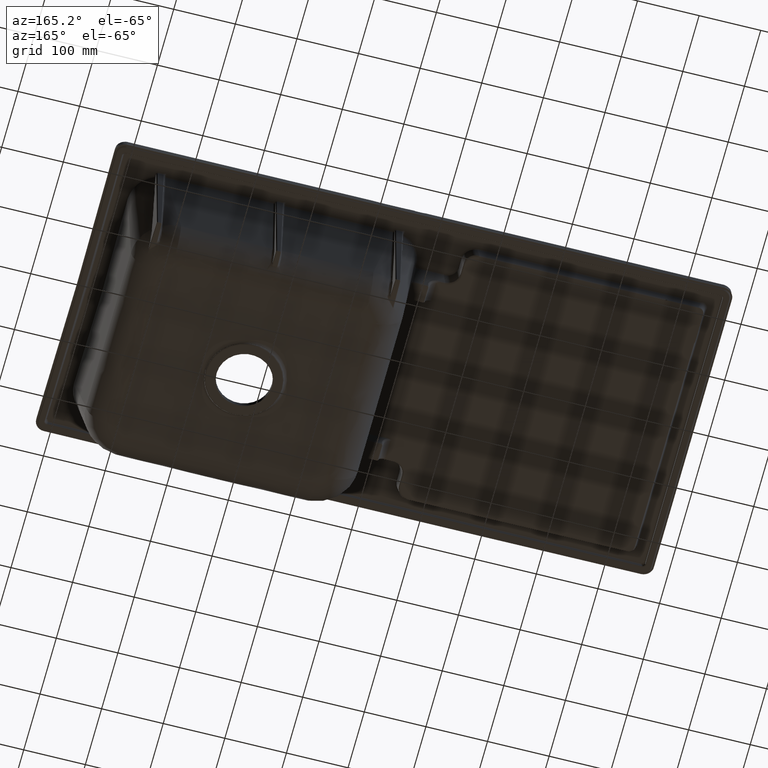
[diagram: clean part render]
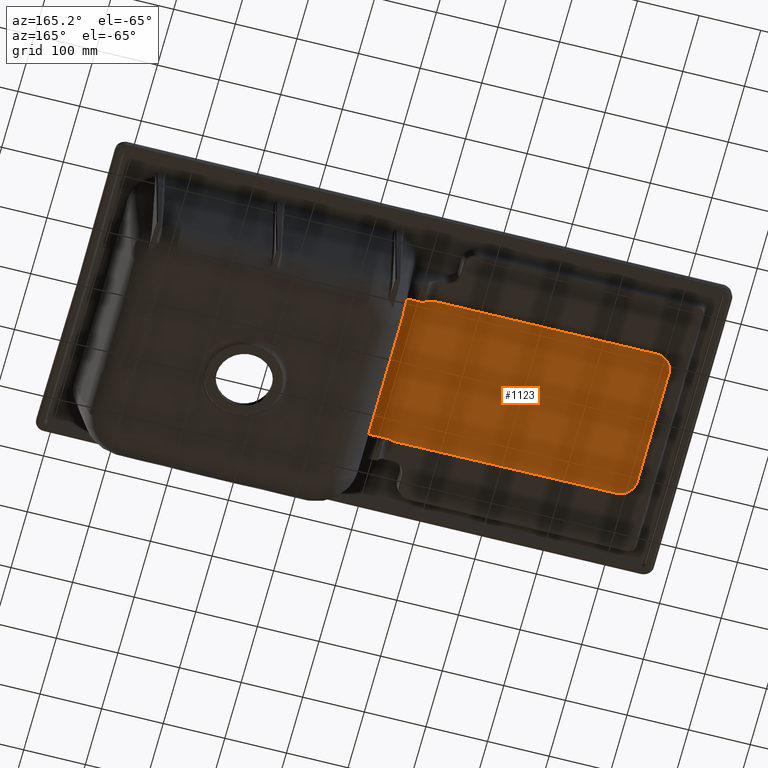
[diagram: same view with one face highlighted and labeled with its STEP entity id]
A machine part, auxiliary view. The second image highlights one B-rep face of the part: STEP entity #1123.
In plain terms, the highlighted face is a freeform B-spline surface patch.
Its self-contained STEP definition (entity closure, byte-faithful):
#1123=ADVANCED_FACE('',(#1654),#1575,.T.);
#1575=B_SPLINE_SURFACE_WITH_KNOTS('',3,1,((#9357,#9358),(#9359,#9360),(#9361,
#9362),(#9363,#9364)),.UNSPECIFIED.,.F.,.F.,.F.,(4,4),(2,2),(0.,1.),(0.,
1.),.UNSPECIFIED.);
#1654=FACE_OUTER_BOUND('',#2096,.T.);
#2096=EDGE_LOOP('',(#2577,#2578,#2579,#2580,#2581,#2582,#2583,#2584,#2585,
#2586,#2587,#2588,#2589));
#2577=ORIENTED_EDGE('',*,*,#5234,.F.);
#2578=ORIENTED_EDGE('',*,*,#5235,.F.);
#2579=ORIENTED_EDGE('',*,*,#5236,.F.);
#2580=ORIENTED_EDGE('',*,*,#5237,.F.);
#2581=ORIENTED_EDGE('',*,*,#5238,.F.);
#2582=ORIENTED_EDGE('',*,*,#5239,.F.);
#2583=ORIENTED_EDGE('',*,*,#5240,.F.);
#2584=ORIENTED_EDGE('',*,*,#5241,.F.);
#2585=ORIENTED_EDGE('',*,*,#5242,.F.);
#2586=ORIENTED_EDGE('',*,*,#5243,.F.);
#2587=ORIENTED_EDGE('',*,*,#5244,.F.);
#2588=ORIENTED_EDGE('',*,*,#5245,.F.);
#2589=ORIENTED_EDGE('',*,*,#5246,.F.);
#4643=VERTEX_POINT('',#9246);
#4644=VERTEX_POINT('',#9247);
#4645=VERTEX_POINT('',#9252);
#4646=VERTEX_POINT('',#9257);
#4647=VERTEX_POINT('',#9268);
#4648=VERTEX_POINT('',#9279);
#4649=VERTEX_POINT('',#9296);
#4650=VERTEX_POINT('',#9301);
#4651=VERTEX_POINT('',#9310);
#4652=VERTEX_POINT('',#9315);
#4653=VERTEX_POINT('',#9324);
#4654=VERTEX_POINT('',#9329);
#4655=VERTEX_POINT('',#9346);
#5234=EDGE_CURVE('',#4643,#4644,#6262,.T.);
#5235=EDGE_CURVE('',#4645,#4643,#6263,.T.);
#5236=EDGE_CURVE('',#4646,#4645,#6264,.T.);
#5237=EDGE_CURVE('',#4647,#4646,#6265,.T.);
#5238=EDGE_CURVE('',#4648,#4647,#6266,.T.);
#5239=EDGE_CURVE('',#4649,#4648,#6267,.T.);
#5240=EDGE_CURVE('',#4650,#4649,#6268,.T.);
#5241=EDGE_CURVE('',#4651,#4650,#6269,.T.);
#5242=EDGE_CURVE('',#4652,#4651,#6270,.T.);
#5243=EDGE_CURVE('',#4653,#4652,#6271,.T.);
#5244=EDGE_CURVE('',#4654,#4653,#6272,.T.);
#5245=EDGE_CURVE('',#4655,#4654,#6273,.T.);
#5246=EDGE_CURVE('',#4644,#4655,#6274,.T.);
#6262=B_SPLINE_CURVE_WITH_KNOTS('',3,(#9236,#9237,#9238,#9239,#9240,#9241,
#9242,#9243,#9244,#9245),.UNSPECIFIED.,.F.,.F.,(4,2,2,2,4),(0.,0.25,0.5,
0.75,1.),.UNSPECIFIED.);
#6263=B_SPLINE_CURVE_WITH_KNOTS('',3,(#9248,#9249,#9250,#9251),
 .UNSPECIFIED.,.F.,.F.,(4,4),(0.,1.),.UNSPECIFIED.);
#6264=B_SPLINE_CURVE_WITH_KNOTS('',3,(#9253,#9254,#9255,#9256),
 .UNSPECIFIED.,.F.,.F.,(4,4),(0.,1.),.UNSPECIFIED.);
#6265=B_SPLINE_CURVE_WITH_KNOTS('',3,(#9258,#9259,#9260,#9261,#9262,#9263,
#9264,#9265,#9266,#9267),.UNSPECIFIED.,.F.,.F.,(4,2,2,2,4),(0.,0.25,0.5,
0.75,1.),.UNSPECIFIED.);
#6266=B_SPLINE_CURVE_WITH_KNOTS('',3,(#9269,#9270,#9271,#9272,#9273,#9274,
#9275,#9276,#9277,#9278),.UNSPECIFIED.,.F.,.F.,(4,2,2,2,4),(0.,0.001818422318701,
0.068091667028033,0.333184645865361,1.),.UNSPECIFIED.);
#6267=B_SPLINE_CURVE_WITH_KNOTS('',3,(#9280,#9281,#9282,#9283,#9284,#9285,
#9286,#9287,#9288,#9289,#9290,#9291,#9292,#9293,#9294,#9295),
 .UNSPECIFIED.,.F.,.F.,(4,2,2,2,2,2,2,4),(0.,0.249999999999997,0.374999999999995,
0.437499999999993,0.468749999999992,0.499999999999991,0.749999999999995,
1.),.UNSPECIFIED.);
#6268=B_SPLINE_CURVE_WITH_KNOTS('',3,(#9297,#9298,#9299,#9300),
 .UNSPECIFIED.,.F.,.F.,(4,4),(0.,1.),.UNSPECIFIED.);
#6269=B_SPLINE_CURVE_WITH_KNOTS('',3,(#9302,#9303,#9304,#9305,#9306,#9307,
#9308,#9309),.UNSPECIFIED.,.F.,.F.,(4,2,2,4),(0.,0.25,0.5,1.),
 .UNSPECIFIED.);
#6270=B_SPLINE_CURVE_WITH_KNOTS('',3,(#9311,#9312,#9313,#9314),
 .UNSPECIFIED.,.F.,.F.,(4,4),(0.,1.),.UNSPECIFIED.);
#6271=B_SPLINE_CURVE_WITH_KNOTS('',3,(#9316,#9317,#9318,#9319,#9320,#9321,
#9322,#9323),.UNSPECIFIED.,.F.,.F.,(4,2,2,4),(0.,0.249999999999998,0.499999999999996,
1.),.UNSPECIFIED.);
#6272=B_SPLINE_CURVE_WITH_KNOTS('',3,(#9325,#9326,#9327,#9328),
 .UNSPECIFIED.,.F.,.F.,(4,4),(0.,1.),.UNSPECIFIED.);
#6273=B_SPLINE_CURVE_WITH_KNOTS('',3,(#9330,#9331,#9332,#9333,#9334,#9335,
#9336,#9337,#9338,#9339,#9340,#9341,#9342,#9343,#9344,#9345),
 .UNSPECIFIED.,.F.,.F.,(4,2,2,2,2,2,2,4),(0.,0.25,0.5,0.531249999999999,
0.562499999999999,0.625,0.75,1.),.UNSPECIFIED.);
#6274=B_SPLINE_CURVE_WITH_KNOTS('',3,(#9347,#9348,#9349,#9350,#9351,#9352,
#9353,#9354,#9355,#9356),.UNSPECIFIED.,.F.,.F.,(4,2,2,2,4),(0.,0.0165683111773069,
0.082841555886534,0.347934534723442,1.),.UNSPECIFIED.);
#9236=CARTESIAN_POINT('',(-436.823176198158,-96.9804875295234,-33.1253983919792));
#9237=CARTESIAN_POINT('',(-436.826813351735,-100.658943555463,-33.1253603024037));
#9238=CARTESIAN_POINT('',(-436.135805677247,-104.20563049958,-33.1325967823744));
#9239=CARTESIAN_POINT('',(-433.415160250501,-110.910616524318,-33.1610883561512));
#9240=CARTESIAN_POINT('',(-431.385304990937,-113.987982306221,-33.1823457277717));
#9241=CARTESIAN_POINT('',(-426.32021197814,-119.094288406202,-33.2353891967375));
#9242=CARTESIAN_POINT('',(-423.242391369267,-121.154986901284,-33.2676212370054));
#9243=CARTESIAN_POINT('',(-416.593251636671,-123.906514700434,-33.3372534108201));
#9244=CARTESIAN_POINT('',(-412.968877266628,-124.628379976104,-33.3752091579174));
#9245=CARTESIAN_POINT('',(-409.32672696493,-124.635326588598,-33.4133510609404));
#9246=CARTESIAN_POINT('',(-436.823176198159,-96.9804875295234,-33.1253983919776));
#9247=CARTESIAN_POINT('',(-409.326726964917,-124.635326582043,-33.4133510609388));
#9248=CARTESIAN_POINT('',(-436.727281733417,0.00292663694321562,-33.1264026331751));
#9249=CARTESIAN_POINT('',(-436.759246554998,-32.3248780852123,-33.1260678861098));
#9250=CARTESIAN_POINT('',(-436.791211376579,-64.6526828073679,-33.1257331390445));
#9251=CARTESIAN_POINT('',(-436.82317619816,-96.9804875295234,-33.1253983919792));
#9252=CARTESIAN_POINT('',(-436.727284627192,0.00292663598934576,-33.126402602869));
#9253=CARTESIAN_POINT('',(-436.823176198161,96.9804875295234,-33.1253983919792));
#9254=CARTESIAN_POINT('',(-436.791213305763,64.6546338980274,-33.1257331188414));
#9255=CARTESIAN_POINT('',(-436.759250413365,32.3287802665314,-33.1260678457036));
#9256=CARTESIAN_POINT('',(-436.727287520966,0.00292663503546388,-33.1264025725658));
#9257=CARTESIAN_POINT('',(-436.82317619816,96.9804875295234,-33.1253983919779));
#9258=CARTESIAN_POINT('',(-409.326726964356,124.635326588599,-33.4133510609464));
#9259=CARTESIAN_POINT('',(-413.004325357357,124.628312366627,-33.3748379328094));
#9260=CARTESIAN_POINT('',(-416.552078239933,123.919616750316,-33.3376845933841));
#9261=CARTESIAN_POINT('',(-423.235413315929,121.161782461872,-33.2676943136803));
#9262=CARTESIAN_POINT('',(-426.302880475895,119.107012421095,-33.2355706984393));
#9263=CARTESIAN_POINT('',(-431.369183436334,114.008952280267,-33.1825145584682));
#9264=CARTESIAN_POINT('',(-433.409758975821,110.914336420764,-33.161144920235));
#9265=CARTESIAN_POINT('',(-436.121540755505,104.250308281109,-33.1327461697463));
#9266=CARTESIAN_POINT('',(-436.826778017359,100.623207932612,-33.1253606724379));
#9267=CARTESIAN_POINT('',(-436.823176198158,96.9804875295235,-33.1253983919792));
#9268=CARTESIAN_POINT('',(-409.326726964344,124.635326582044,-33.4133510609449));
#9269=CARTESIAN_POINT('',(-47.2101514960194,125.325985470727,-37.2055655936906));
#9270=CARTESIAN_POINT('',(-47.4296451169538,125.325566834206,-37.2032669778427));
#9271=CARTESIAN_POINT('',(-47.6491387378882,125.325148197685,-37.2009683619949));
#9272=CARTESIAN_POINT('',(-55.8681791652612,125.309472159029,-37.114895625574));
#9273=CARTESIAN_POINT('',(-63.8677259716998,125.294214756892,-37.031121505001));
#9274=CARTESIAN_POINT('',(-103.865460003893,125.21792774621,-36.6122509021362));
#9275=CARTESIAN_POINT('',(-135.863647229647,125.156898137665,-36.2771544198442));
#9276=CARTESIAN_POINT('',(-248.350131958374,124.942354542391,-35.0991556453497));
#9277=CARTESIAN_POINT('',(-328.838429461346,124.788840555663,-34.256253353147));
#9278=CARTESIAN_POINT('',(-409.326726964319,124.635326568934,-33.4133510609445));
#9279=CARTESIAN_POINT('',(-47.2101514960199,125.325985470727,-37.2055655936909));
#9280=CARTESIAN_POINT('',(-38.1371371951648,122.840298280598,-37.3005405204041));
#9281=CARTESIAN_POINT('',(-38.7522636838497,122.840094996141,-37.2934599440163));
#9282=CARTESIAN_POINT('',(-39.4641884109892,122.890347256996,-37.283305612524));
#9283=CARTESIAN_POINT('',(-40.6452389386921,123.07944093929,-37.2715018645204));
#9284=CARTESIAN_POINT('',(-41.0580639807956,123.161133820038,-37.2675551130958));
#9285=CARTESIAN_POINT('',(-41.6994398050696,123.312902680275,-37.2620239747626));
#9286=CARTESIAN_POINT('',(-41.9169776571129,123.36831821591,-37.2601789798167));
#9287=CARTESIAN_POINT('',(-42.2484364510063,123.458452400701,-37.2571897315086));
#9288=CARTESIAN_POINT('',(-42.3597827721595,123.489663123507,-37.2561562790841));
#9289=CARTESIAN_POINT('',(-42.5841368254159,123.554349274758,-37.2539817719683));
#9290=CARTESIAN_POINT('',(-42.7257263098328,123.596582044653,-37.2525360973522));
#9291=CARTESIAN_POINT('',(-43.2904464940764,123.767470026894,-37.2465296548008));
#9292=CARTESIAN_POINT('',(-44.0623849282541,124.020683712666,-37.238500973907));
#9293=CARTESIAN_POINT('',(-46.0174296688167,124.790546001826,-37.2180861832383));
#9294=CARTESIAN_POINT('',(-46.7259573824578,125.108927261434,-37.2106362479453));
#9295=CARTESIAN_POINT('',(-47.2101514960193,125.325985470727,-37.2055655936906));
#9296=CARTESIAN_POINT('',(-38.1371695945853,122.840369245655,-37.3005710437717));
#9297=CARTESIAN_POINT('',(-6.72575156788038,122.900198428869,-37.6295327362048));
#9298=CARTESIAN_POINT('',(-17.1962279053334,122.88022826407,-37.5198821561938));
#9299=CARTESIAN_POINT('',(-27.6667042427864,122.860258099271,-37.4102315761827));
#9300=CARTESIAN_POINT('',(-38.1371805802393,122.840287934472,-37.3005809961717));
#9301=CARTESIAN_POINT('',(-6.72457310104502,122.90020022787,-37.6295450775173));
#9302=CARTESIAN_POINT('',(-3.75860165717774,119.904128823609,-37.6606057932656));
#9303=CARTESIAN_POINT('',(-3.75860165717774,120.33919870768,-37.6606057932656));
#9304=CARTESIAN_POINT('',(-3.85144207043877,120.749762078435,-37.6586830709068));
#9305=CARTESIAN_POINT('',(-4.15984495673919,121.466785368781,-37.6555173711108));
#9306=CARTESIAN_POINT('',(-4.34712544803582,121.745536072626,-37.6544425612465));
#9307=CARTESIAN_POINT('',(-5.1595685092982,122.57139624452,-37.6459343663925));
#9308=CARTESIAN_POINT('',(-5.93131873470266,122.901713637019,-37.637852321439));
#9309=CARTESIAN_POINT('',(-6.72575156667094,122.90019842885,-37.6295327361022));
#9310=CARTESIAN_POINT('',(-3.75860170124076,119.904509567949,-37.6606058065854));
#9311=CARTESIAN_POINT('',(-3.75860165235029,-119.904128833659,-37.6606058484428));
#9312=CARTESIAN_POINT('',(-3.75860165235032,-39.9680429445535,-37.6606058484428));
#9313=CARTESIAN_POINT('',(-3.75860165235034,39.9680429445521,-37.6606058484428));
#9314=CARTESIAN_POINT('',(-3.75860165235037,119.904128833658,-37.6606058484428));
#9315=CARTESIAN_POINT('',(-3.75860165556912,-119.904125887963,-37.6606058116835));
#9316=CARTESIAN_POINT('',(-6.72575156667115,-122.90019842885,-37.6295327360991));
#9317=CARTESIAN_POINT('',(-6.32892367985416,-122.900955291899,-37.6336884599508));
#9318=CARTESIAN_POINT('',(-5.93622492383014,-122.821337877308,-37.6372105855969));
#9319=CARTESIAN_POINT('',(-5.21682713879962,-122.519408143675,-37.644751334955));
#9320=CARTESIAN_POINT('',(-4.8632915510773,-122.269824962034,-37.6490370848585));
#9321=CARTESIAN_POINT('',(-4.13225993025071,-121.52792092991,-37.6566927099367));
#9322=CARTESIAN_POINT('',(-3.75859999700356,-120.775177293222,-37.6606058106484));
#9323=CARTESIAN_POINT('',(-3.75860165718357,-119.904122945426,-37.6606057932624));
#9324=CARTESIAN_POINT('',(-6.72575156729617,-122.900198249289,-37.6295327361847));
#9325=CARTESIAN_POINT('',(-38.1358242119763,-122.84029052145,-37.3005952005432));
#9326=CARTESIAN_POINT('',(-27.6657999972777,-122.860259823923,-37.4102410457626));
#9327=CARTESIAN_POINT('',(-17.1957757825791,-122.880229126396,-37.5198868909821));
#9328=CARTESIAN_POINT('',(-6.72575156788056,-122.900198428868,-37.6295327362016));
#9329=CARTESIAN_POINT('',(-38.1359050728434,-122.840340100853,-37.3005774874395));
#9330=CARTESIAN_POINT('',(-47.2101514917534,-125.325985468815,-37.2055655937356));
#9331=CARTESIAN_POINT('',(-46.7260890134741,-125.109004473738,-37.2106348694586));
#9332=CARTESIAN_POINT('',(-46.0174835650979,-124.790594485028,-37.2180856836547));
#9333=CARTESIAN_POINT('',(-44.0618144331932,-124.020500111924,-37.2385068858914));
#9334=CARTESIAN_POINT('',(-43.2902236661849,-123.767410372423,-37.2465319418509));
#9335=CARTESIAN_POINT('',(-42.7251544228049,-123.596424865319,-37.2525420888289));
#9336=CARTESIAN_POINT('',(-42.583591887626,-123.554202481738,-37.2539875153678));
#9337=CARTESIAN_POINT('',(-42.3592213347898,-123.489515646651,-37.2561623779132));
#9338=CARTESIAN_POINT('',(-42.2478662224687,-123.458304721219,-37.2571960668287));
#9339=CARTESIAN_POINT('',(-41.9163793276936,-123.368170453552,-37.2601862540866));
#9340=CARTESIAN_POINT('',(-41.6988204288062,-123.312755565363,-37.2620321807937));
#9341=CARTESIAN_POINT('',(-41.0573740527419,-123.160991540901,-37.2675674767629));
#9342=CARTESIAN_POINT('',(-40.644494857889,-123.079305209246,-37.2715156396535));
#9343=CARTESIAN_POINT('',(-39.4633002509184,-122.890242881926,-37.2833083471022));
#9344=CARTESIAN_POINT('',(-38.7512653098343,-122.840032915171,-37.2934614940475));
#9345=CARTESIAN_POINT('',(-38.1360226944656,-122.840298422015,-37.3005518607617));
#9346=CARTESIAN_POINT('',(-47.2101514953078,-125.325985470409,-37.2055655936983));
#9347=CARTESIAN_POINT('',(-409.326726964892,-124.635326568933,-33.4133510609385));
#9348=CARTESIAN_POINT('',(-407.326840263283,-124.639140919468,-33.4342945910818));
#9349=CARTESIAN_POINT('',(-405.326953561673,-124.642955270002,-33.4552381212251));
#9350=CARTESIAN_POINT('',(-395.327520053625,-124.662027022672,-33.5599557719413));
#9351=CARTESIAN_POINT('',(-387.327973247186,-124.677284424809,-33.6437298925143));
#9352=CARTESIAN_POINT('',(-347.330239214993,-124.75357143549,-34.0626004953792));
#9353=CARTESIAN_POINT('',(-315.332051989238,-124.814601044036,-34.3976969776712));
#9354=CARTESIAN_POINT('',(-204.625960340996,-125.025748925296,-35.5570508378724));
#9355=CARTESIAN_POINT('',(-125.918055918507,-125.175867198011,-36.3813082157817));
#9356=CARTESIAN_POINT('',(-47.2101514960192,-125.325985470727,-37.2055655936909));
#9357=CARTESIAN_POINT('',(53.391153750218,-138.228285164983,-38.2590985099197));
#9358=CARTESIAN_POINT('',(53.3911537500422,138.228285165507,-38.2590985099254));
#9359=CARTESIAN_POINT('',(-134.381908236908,-137.833882456006,-36.2926717215167));
#9360=CARTESIAN_POINT('',(-134.381908236756,137.833882456137,-36.2926717215111));
#9361=CARTESIAN_POINT('',(-322.154970224034,-137.439479747102,-34.3262449331153));
#9362=CARTESIAN_POINT('',(-322.154970223552,137.439479747375,-34.3262449331175));
#9363=CARTESIAN_POINT('',(-509.928032211158,-137.045077038057,-32.3598181447061));
#9364=CARTESIAN_POINT('',(-509.928032210352,137.045077038414,-32.3598181447178));